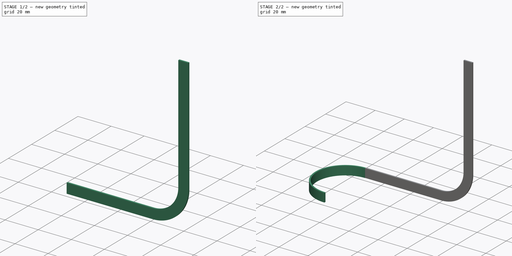
[diagram: build sequence overview — one tinted view per stage of 2, left to right]
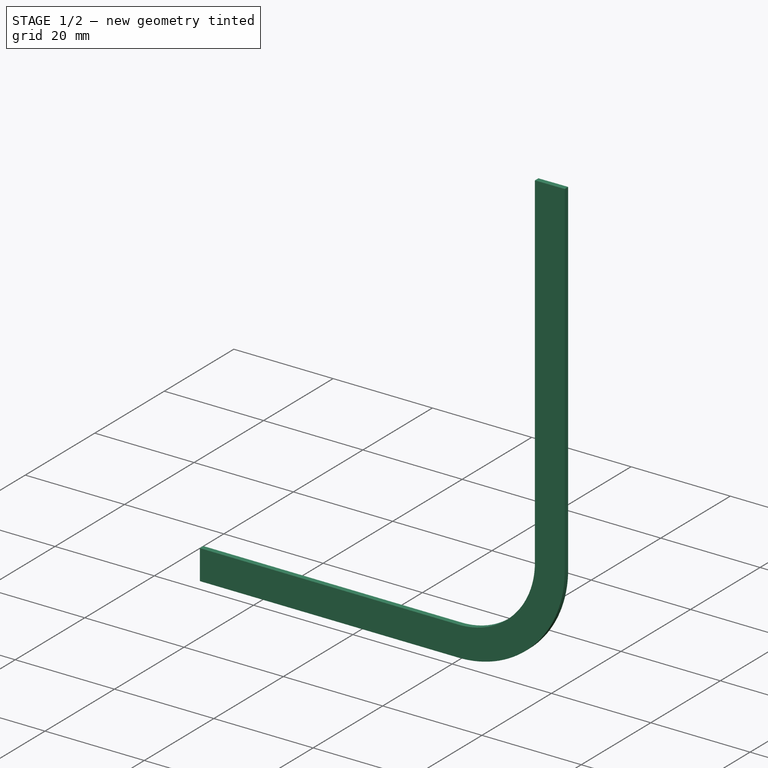
[diagram: stage 1 of 2 — iso view after this stage's code; geometry added in this stage tinted green]
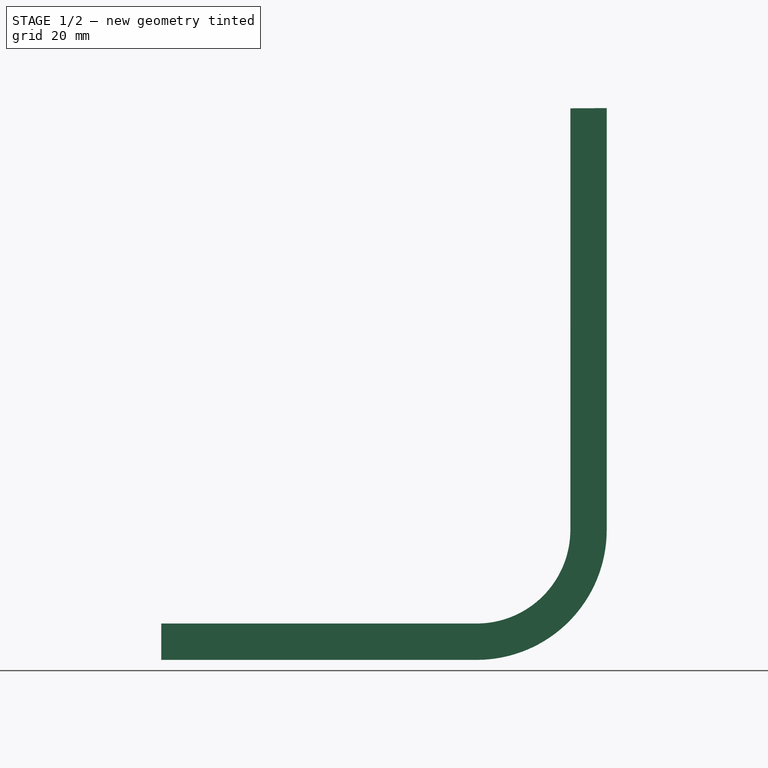
[diagram: stage 1 of 2 — front view after this stage's code; geometry added in this stage tinted green]
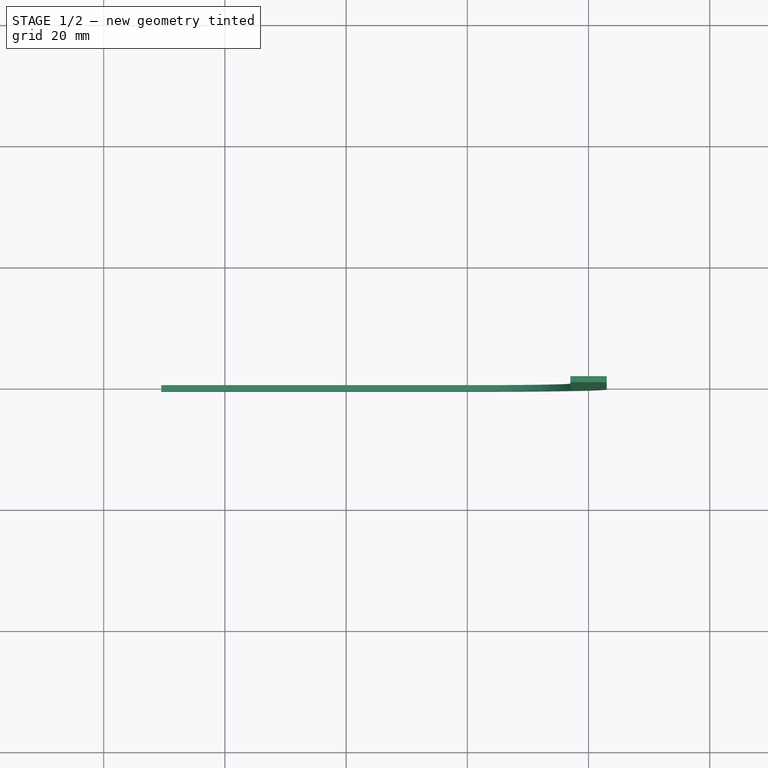
[diagram: stage 1 of 2 — top view after this stage's code; geometry added in this stage tinted green]
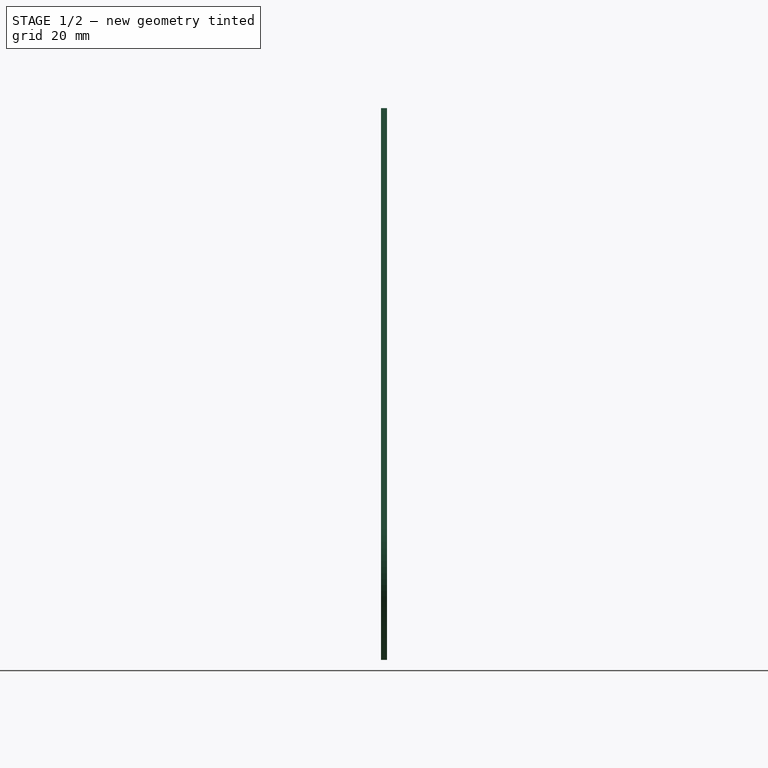
[diagram: stage 1 of 2 — right view after this stage's code; geometry added in this stage tinted green]
FCSTD DOCUMENT  (FreeCAD 1.1R20260325 (Git shallow))
Label: Multi-Sketch-Sweep-Datum
License: All rights reserved
LicenseURL: https://en.wikipedia.org/wiki/All_rights_reserved
objects: Part::DatumPlane×6, Sketcher::SketchObject×6, PartDesign::AdditivePipe×2, App::Point×1, PartDesign::Body×1
note: 19 computed .brp shape members not serialized (recipe doc carries the construction recipe); baked Part::Feature solids carry a one-line shape summary decoded from their .brp

FEATURE [App::Point] Origin001
  Role = Origin
FEATURE [Part::DatumPlane] DatumPlane
  AttachmentOffset = pos=(0,0,20) rot=(0,0,1;0rad)
  AttachmentSupport = -> [Origin]
  MapMode = 5
  Placement = pos=(0,-20,4.4e-15) rot=(1,0,0;1.5708rad)
FEATURE [Sketcher::SketchObject] Sketch
  ArcFitTolerance = 1e-06
  AttachmentSupport = -> [DatumPlane]
  ExternalTypes = [0]
  FullyConstrained = false
  MakeInternals = false
  MapMode = 5
  Placement = pos=(0,-20,4.4e-15) rot=(1,0,0;1.5708rad)
  _ExternalGeoVersion = 1
  sketch-geometry (3):
    g0: ArcOfCircle CenterX=-18.4492 CenterY=18.4495 CenterZ=0 NormalX=0 NormalY=0 NormalZ=1 AngleXU=0 Radius=18.4495 StartAngle=4.71239 EndAngle=6.28908
    g1: LineSegment StartX=0 StartY=18.5582 StartZ=0 EndX=0 EndY=88.0211 EndZ=0
    g2: LineSegment StartX=-18.4492 StartY=0 StartZ=0 EndX=-70.4964 EndY=0 EndZ=0
  constraints (6):
    c: PointOnObject(g0,g-1)
    c: PointOnObject(g0,g-2)
    c: Coincident(g1,g0)
    c: PointOnObject(g1,g-2)
    c: Coincident(g2,g0)
    c: PointOnObject(g2,g-1)
FEATURE [Part::DatumPlane] DatumPlane001
  AttachmentOffset = pos=(0,0,-20) rot=(0,0,1;0rad)
  AttachmentSupport = -> [Origin]
  MapMode = 3
  Placement = pos=(0,20,-4.4e-15) rot=(1,0,0;1.5708rad)
FEATURE [Sketcher::SketchObject] Sketch001
  ArcFitTolerance = 1e-06
  AttachmentSupport = -> [DatumPlane001]
  ExternalTypes = [0]
  FullyConstrained = false
  MakeInternals = false
  MapMode = 5
  Placement = pos=(0,20,-4.4e-15) rot=(1,0,0;1.5708rad)
  _ExternalGeoVersion = 1
  sketch-geometry (3):
    g0: ArcOfCircle CenterX=-18.4492 CenterY=18.4495 CenterZ=0 NormalX=0 NormalY=0 NormalZ=1 AngleXU=0 Radius=18.4495 StartAngle=4.71239 EndAngle=6.28908
    g1: LineSegment StartX=-3.6e-15 StartY=18.5582 StartZ=0 EndX=0 EndY=88.0211 EndZ=0
    g2: LineSegment StartX=-18.4492 StartY=0 StartZ=0 EndX=-70.4964 EndY=0 EndZ=0
  constraints (6):
    c: PointOnObject(g0,g-1)
    c: PointOnObject(g0,g-2)
    c: Coincident(g1,g0)
    c: PointOnObject(g1,g-2)
    c: Coincident(g2,g0)
    c: PointOnObject(g2,g-1)
FEATURE [Part::DatumPlane] DatumPlane002
  AttachmentSupport = -> [Sketch,Sketch001]
  MapMode = 45
  Placement = pos=(-1.3e-15,1.24e-14,53.2897) rot=(0.57735,0.57735,0.57735;2.0944rad)
FEATURE [Sketcher::SketchObject] Sketch002
  ArcFitTolerance = 1e-06
  AttachmentSupport = -> [DatumPlane002]
  ExternalGeometry = -> [Sketch,Sketch001]
  ExternalTypes = [0,0]
  FullyConstrained = false
  MakeInternals = false
  MapMode = 5
  Placement = pos=(-1.3e-15,1.24e-14,53.2897) rot=(0.57735,0.57735,0.57735;2.0944rad)
  _ExternalGeoVersion = 1
  sketch-geometry (1):
    g0: ArcOfCircle CenterX=-5.187e-13 CenterY=34.7195 CenterZ=0 NormalX=0 NormalY=0 NormalZ=1 AngleXU=0 Radius=20 StartAngle=0.000597675 EndAngle=3.14099
  constraints (2):
    c: Coincident(g0,g-3)
    c: Coincident(g0,g-4)
FEATURE [Part::DatumPlane] DatumPlane003
  AttachmentSupport = -> [Sketch001,Sketch]
  MapMode = 45
  Placement = pos=(-44.4728,-2e-16,0) rot=(0,0,1;1.5708rad)
FEATURE [Sketcher::SketchObject] Sketch003
  ArcFitTolerance = 1e-06
  AttachmentSupport = -> [DatumPlane003]
  ExternalGeometry = -> [Sketch,Sketch001]
  ExternalTypes = [0,0]
  FullyConstrained = false
  MakeInternals = false
  MapMode = 5
  Placement = pos=(-44.4728,-2e-16,0) rot=(0,0,1;1.5708rad)
  _ExternalGeoVersion = 1
  sketch-geometry (1):
    g0: ArcOfCircle CenterX=3.848e-13 CenterY=26.0183 CenterZ=0 NormalX=0 NormalY=0 NormalZ=1 AngleXU=0 Radius=20 StartAngle=0.000264939 EndAngle=3.14133
  constraints (2):
    c: Coincident(g0,g-3)
    c: Coincident(g0,g-4)
FEATURE [Part::DatumPlane] DatumPlane004
  AttachmentOffset = pos=(0,0,-52) rot=(0,0,1;0rad)
  AttachmentSupport = -> [Sketch001]
  MapMode = 7
  Placement = pos=(-70.4492,20,-4.4e-15) rot=(0.57735,0.57735,0.57735;2.0944rad)
FEATURE [Sketcher::SketchObject] Sketch004
  ArcFitTolerance = 1e-06
  AttachmentSupport = -> [DatumPlane004]
  ExternalTypes = [0]
  FullyConstrained = false
  MakeInternals = false
  MapMode = 5
  Placement = pos=(-70.4492,20,-4.4e-15) rot=(0.57735,0.57735,0.57735;2.0944rad)
  _ExternalGeoVersion = 1
  sketch-geometry (5):
    g0: LineSegment StartX=-0.470306 StartY=-3 StartZ=0 EndX=0.529694 EndY=-3 EndZ=0
    g1: LineSegment StartX=0.529694 StartY=-3 StartZ=0 EndX=0.529694 EndY=3 EndZ=0
    g2: LineSegment StartX=0.529694 StartY=3 StartZ=0 EndX=-0.470306 EndY=3 EndZ=0
    g3: LineSegment StartX=-0.470306 StartY=3 StartZ=0 EndX=-0.470306 EndY=-3 EndZ=0
    g4: GeomPoint [constr] X=0.029694 Y=0 Z=0
  constraints (12):
    c: Coincident(g0,g1)
    c: Coincident(g1,g2)
    c: Coincident(g2,g3)
    c: Coincident(g3,g0)
    c: Horizontal(g0)
    c: Horizontal(g2)
    c: Vertical(g1)
    c: Vertical(g3)
    c: Symmetric(g2,g0,g4)
    c: Distance(g1,g3) = 1
    c: Distance(g0,g2) = 6
    c: PointOnObject(g4,g-1)
FEATURE [PartDesign::AdditivePipe] AdditivePipe
  AuxiliaryCurvilinear = true
  AuxiliarySpineTangent = false
  Binormal = (0,0,0)
  Mode = 0
  Placement = pos=(-70.4492,20,-4.4e-15) rot=(0.57735,0.57735,0.57735;2.0944rad)
  Profile = -> Sketch004
  Refine = true
  Spine = -> Sketch001 [Edge1,Edge2,Edge3]
  SpineTangent = false
  Suppressed = false
  Transformation = 0
  Transition = 0
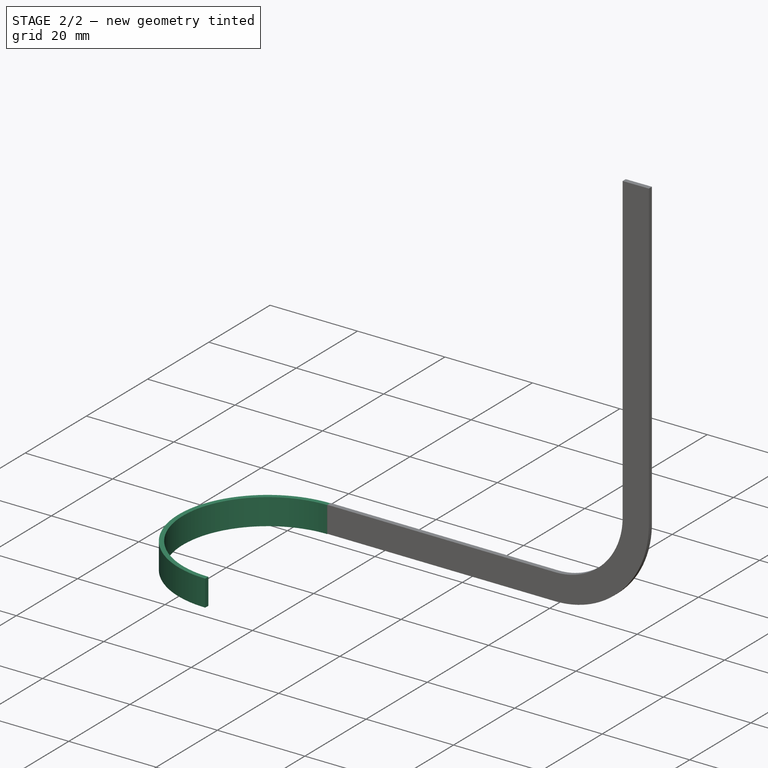
[diagram: stage 2 of 2 — iso view after this stage's code; geometry added in this stage tinted green]
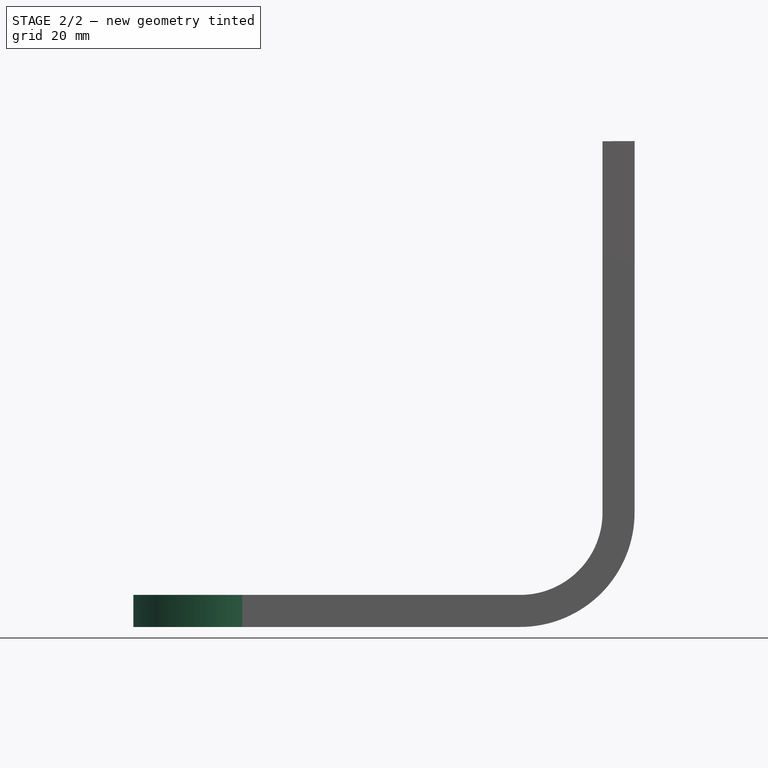
[diagram: stage 2 of 2 — front view after this stage's code; geometry added in this stage tinted green]
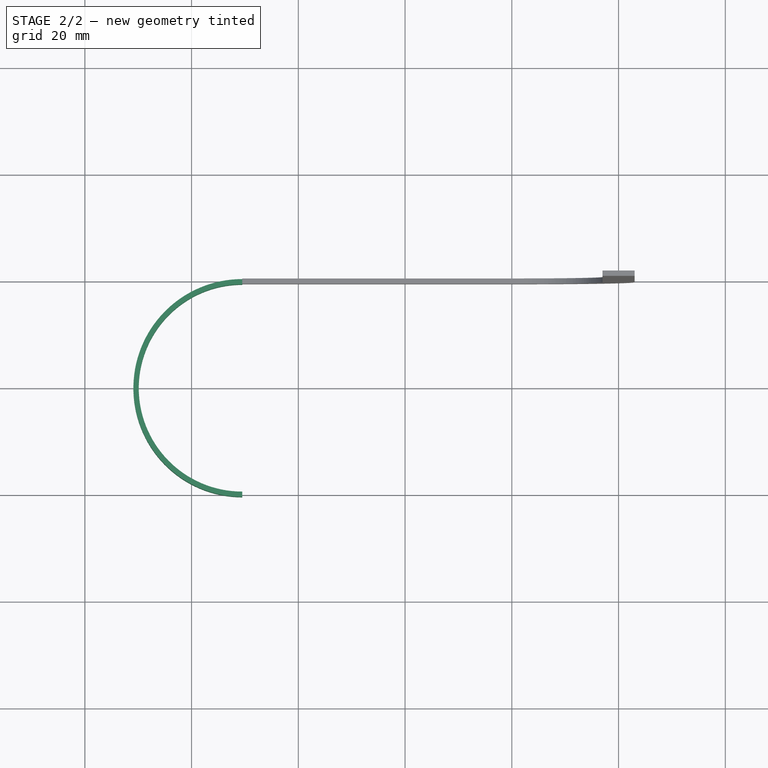
[diagram: stage 2 of 2 — top view after this stage's code; geometry added in this stage tinted green]
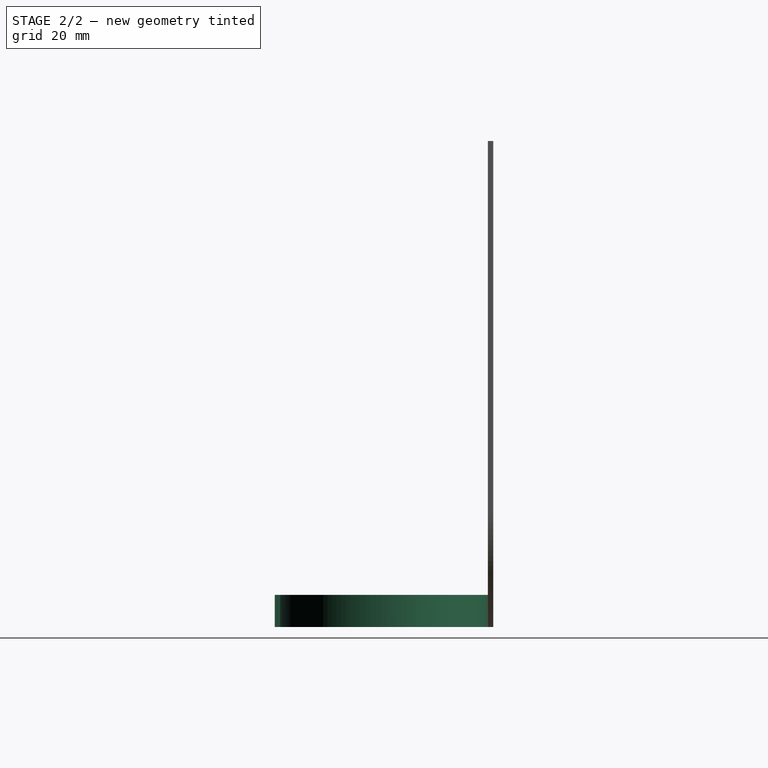
[diagram: stage 2 of 2 — right view after this stage's code; geometry added in this stage tinted green]
FEATURE [Part::DatumPlane] DatumPlane005
  AttachmentSupport = -> [Sketch003]
  MapMode = 7
  Placement = pos=(-70.4964,20,0) rot=(0.577452,-0.577299,-0.577299;2.09424rad)
FEATURE [Sketcher::SketchObject] Sketch005
  ArcFitTolerance = 1e-06
  AttachmentSupport = -> [DatumPlane005]
  ExternalTypes = [0]
  FullyConstrained = false
  MakeInternals = false
  MapMode = 5
  Placement = pos=(-70.4964,20,0) rot=(0.577452,-0.577299,-0.577299;2.09424rad)
  _ExternalGeoVersion = 1
  sketch-geometry (5):
    g0: LineSegment StartX=-0.412444 StartY=-3 StartZ=0 EndX=0.587556 EndY=-3 EndZ=0
    g1: LineSegment StartX=0.587556 StartY=-3 StartZ=0 EndX=0.587556 EndY=3 EndZ=0
    g2: LineSegment StartX=0.587556 StartY=3 StartZ=0 EndX=-0.412444 EndY=3 EndZ=0
    g3: LineSegment StartX=-0.412444 StartY=3 StartZ=0 EndX=-0.412444 EndY=-3 EndZ=0
    g4: GeomPoint [constr] X=0.087556 Y=0 Z=0
  constraints (12):
    c: Coincident(g0,g1)
    c: Coincident(g1,g2)
    c: Coincident(g2,g3)
    c: Coincident(g3,g0)
    c: Horizontal(g0)
    c: Horizontal(g2)
    c: Vertical(g1)
    c: Vertical(g3)
    c: Symmetric(g2,g0,g4)
    c: Distance(g1,g3) = 1
    c: Distance(g0,g2) = 6
    c: PointOnObject(g4,g-1)
FEATURE [PartDesign::AdditivePipe] AdditivePipe001
  AuxiliaryCurvilinear = true
  AuxiliarySpineTangent = false
  BaseFeature = -> AdditivePipe
  Binormal = (0,0,0)
  Mode = 0
  Placement = pos=(-70.4492,20,-4.4e-15) rot=(0.57735,0.57735,0.57735;2.0944rad)
  Profile = -> Sketch005
  Refine = true
  Spine = -> Sketch003 [Edge2]
  SpineTangent = false
  Suppressed = false
  Transformation = 0
  Transition = 0
FEATURE [PartDesign::Body] Body
  AllowCompound = true
  Group = -> [Sketch003,DatumPlane,Sketch,DatumPlane001,Sketch001,DatumPlane002,Sketch002,DatumPlane003,DatumPlane004,Sketch004,AdditivePipe,DatumPlane005,Sketch005,AdditivePipe001]
  Origin = -> Origin
  Tip = -> AdditivePipe001
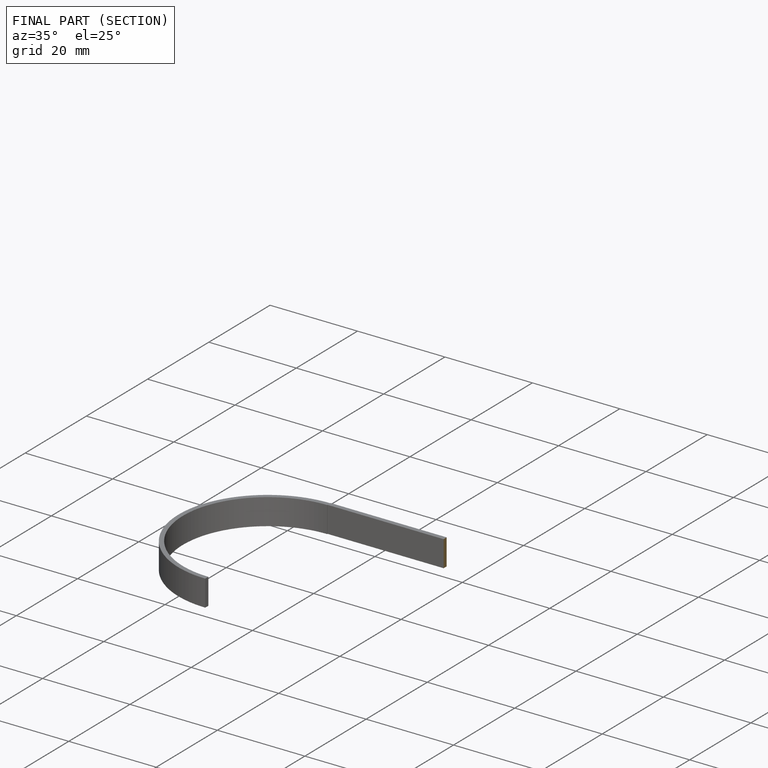
[diagram: finished part — half-section view (interior)]
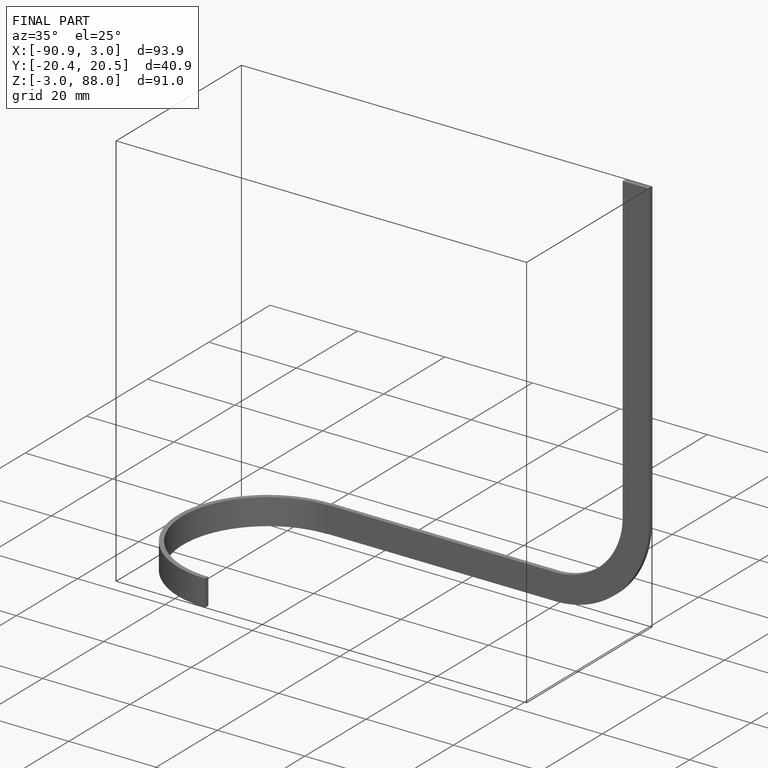
[diagram: finished part — iso view with bounding-box wireframe]
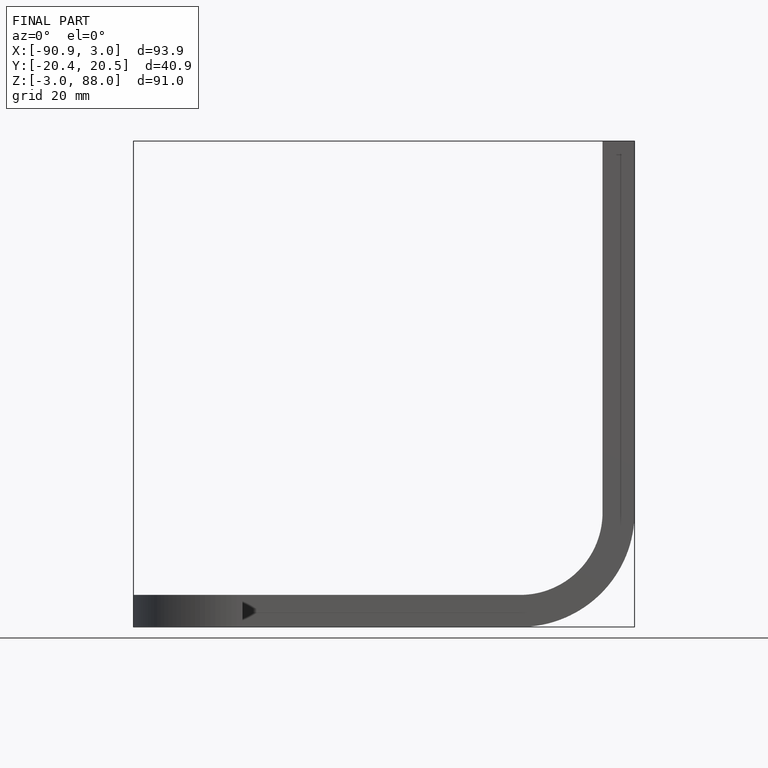
[diagram: finished part — front view with bounding-box wireframe]
